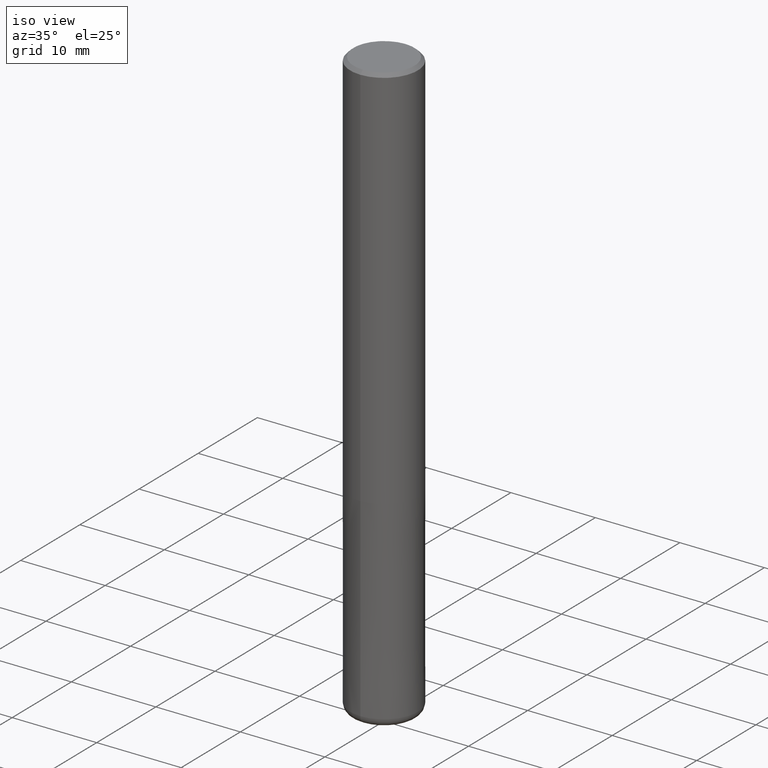
[diagram: clean part render]
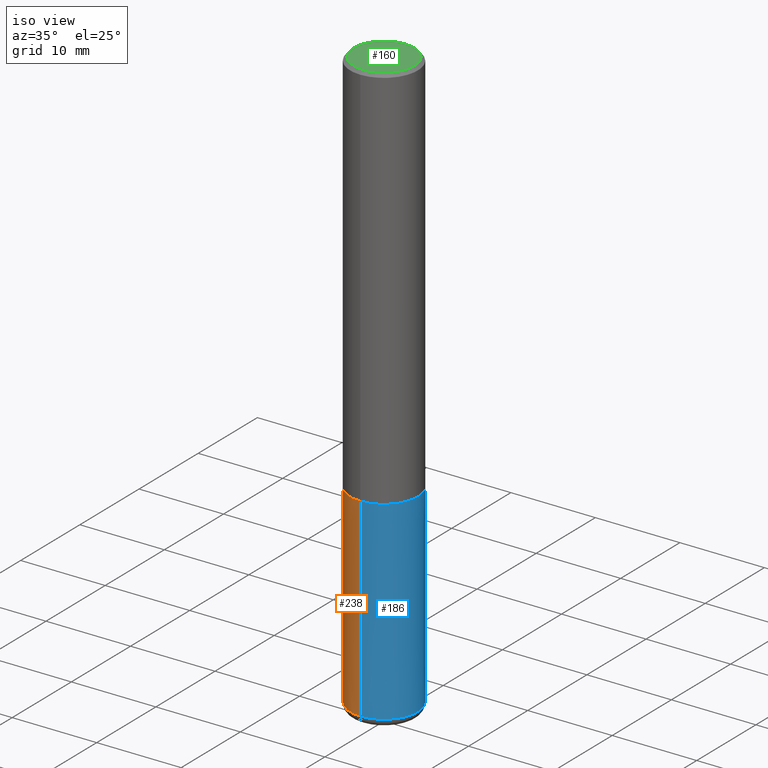
[diagram: same view with three faces highlighted in distinct colors, each labeled with its STEP entity id]
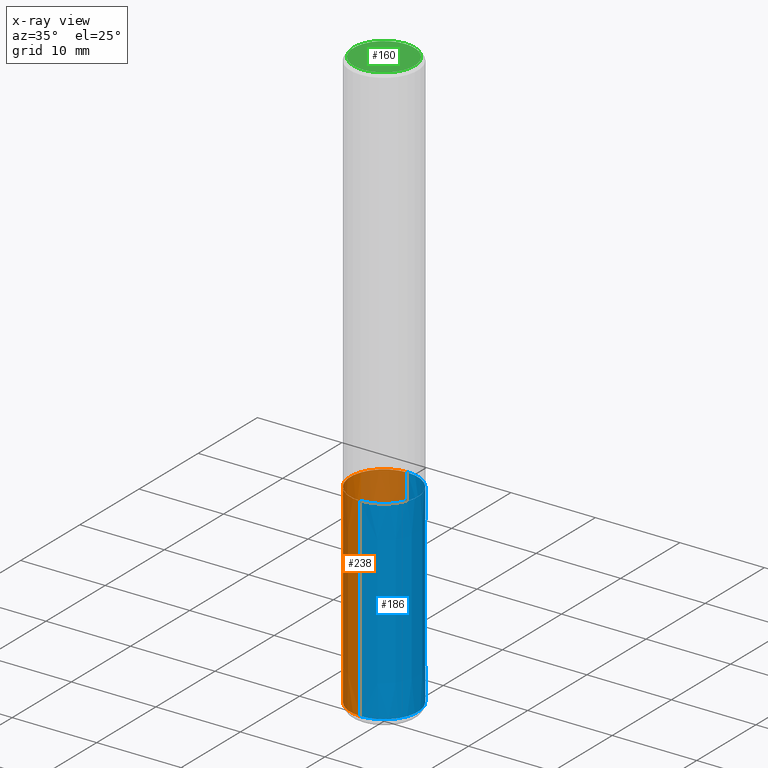
[diagram: x-ray of the same camera — body ghosted, the three highlighted faces saturated]
A machine part, iso view with three faces highlighted in distinct colors.
The next image is the same camera in x-ray (body ghosted, the three faces saturated) — at least one of them is partly hidden behind the body in this view.
Their STEP definitions:

[orange] entity #238 — the highlighted conical surface has half-angle 0 deg.
#110=VERTEX_POINT('',#271);
#126=EDGE_CURVE('',#132,#178,#288,.T.);
#128=VERTEX_POINT('',#290);
#132=VERTEX_POINT('',#294);
#168=EDGE_CURVE('',#128,#178,#336,.T.);
#178=VERTEX_POINT('',#348);
#180=EDGE_CURVE('',#110,#128,#350,.T.);
#222=EDGE_CURVE('',#132,#110,#397,.T.);
#238=ADVANCED_FACE('',(#417),#418,.T.);
#271=CARTESIAN_POINT('',(4.89830295465413E-016,-3.9999,-46.0));
#288=CIRCLE('',#470,4.0);
#290=CARTESIAN_POINT('',(0.0,3.9999,-46.0));
#294=CARTESIAN_POINT('',(4.89842541528951E-016,-4.0,-69.0));
#336=LINE('',#527,#528);
#348=CARTESIAN_POINT('',(0.0,4.0,-69.0));
#350=CIRCLE('',#546,3.9999);
#397=LINE('',#604,#605);
#417=FACE_OUTER_BOUND('',#630,.T.);
#418=CONICAL_SURFACE('',#631,3.99995,4.3478260869383E-006);
#470=AXIS2_PLACEMENT_3D('',#662,#663,#664);
#527=CARTESIAN_POINT('',(-4.89836418497181E-016,3.99995,-57.5));
#528=VECTOR('',#728,1.0);
#546=AXIS2_PLACEMENT_3D('',#741,#742,#743);
#604=CARTESIAN_POINT('',(4.89836418497182E-016,-3.99995,-57.5));
#605=VECTOR('',#800,1.0);
#630=EDGE_LOOP('',(#831,#832,#833,#834));
#631=AXIS2_PLACEMENT_3D('',#835,#836,#837);
#662=CARTESIAN_POINT('',(0.0,0.0,-69.0));
#663=DIRECTION('',(0.0,0.0,-1.0));
#664=DIRECTION('',(0.0,1.0,0.0));
#728=DIRECTION('',(-5.32437545136255E-022,4.3478260869246E-006,-0.999999999990548));
#741=CARTESIAN_POINT('',(0.0,0.0,-46.0));
#742=DIRECTION('',(0.0,0.0,-1.0));
#743=DIRECTION('',(0.0,1.0,0.0));
#800=DIRECTION('',(-5.32437545136255E-022,4.3478260869246E-006,0.999999999990548));
#831=ORIENTED_EDGE('',*,*,#168,.T.);
#832=ORIENTED_EDGE('',*,*,#126,.F.);
#833=ORIENTED_EDGE('',*,*,#222,.T.);
#834=ORIENTED_EDGE('',*,*,#180,.T.);
#835=CARTESIAN_POINT('',(0.0,0.0,-57.5));
#836=DIRECTION('',(0.0,-0.0,-1.0));
#837=DIRECTION('',(0.0,1.0,0.0));

[blue] entity #186 — the highlighted conical surface has half-angle 0 deg.
#110=VERTEX_POINT('',#271);
#124=EDGE_CURVE('',#128,#110,#286,.T.);
#128=VERTEX_POINT('',#290);
#132=VERTEX_POINT('',#294);
#162=EDGE_CURVE('',#178,#132,#330,.T.);
#168=EDGE_CURVE('',#128,#178,#336,.T.);
#178=VERTEX_POINT('',#348);
#186=ADVANCED_FACE('',(#356),#357,.T.);
#222=EDGE_CURVE('',#132,#110,#397,.T.);
#271=CARTESIAN_POINT('',(4.89830295465413E-016,-3.9999,-46.0));
#286=CIRCLE('',#467,3.9999);
#290=CARTESIAN_POINT('',(0.0,3.9999,-46.0));
#294=CARTESIAN_POINT('',(4.89842541528951E-016,-4.0,-69.0));
#330=CIRCLE('',#518,4.0);
#336=LINE('',#527,#528);
#348=CARTESIAN_POINT('',(0.0,4.0,-69.0));
#356=FACE_OUTER_BOUND('',#554,.T.);
#357=CONICAL_SURFACE('',#555,3.99995,4.3478260869383E-006);
#397=LINE('',#604,#605);
#467=AXIS2_PLACEMENT_3D('',#659,#660,#661);
#518=AXIS2_PLACEMENT_3D('',#719,#720,#721);
#527=CARTESIAN_POINT('',(-4.89836418497181E-016,3.99995,-57.5));
#528=VECTOR('',#728,1.0);
#554=EDGE_LOOP('',(#746,#747,#748,#749));
#555=AXIS2_PLACEMENT_3D('',#750,#751,#752);
#604=CARTESIAN_POINT('',(4.89836418497182E-016,-3.99995,-57.5));
#605=VECTOR('',#800,1.0);
#659=CARTESIAN_POINT('',(0.0,0.0,-46.0));
#660=DIRECTION('',(0.0,0.0,-1.0));
#661=DIRECTION('',(0.0,1.0,0.0));
#719=CARTESIAN_POINT('',(0.0,0.0,-69.0));
#720=DIRECTION('',(0.0,0.0,-1.0));
#721=DIRECTION('',(0.0,1.0,0.0));
#728=DIRECTION('',(-5.32437545136255E-022,4.3478260869246E-006,-0.999999999990548));
#746=ORIENTED_EDGE('',*,*,#168,.F.);
#747=ORIENTED_EDGE('',*,*,#124,.T.);
#748=ORIENTED_EDGE('',*,*,#222,.F.);
#749=ORIENTED_EDGE('',*,*,#162,.F.);
#750=CARTESIAN_POINT('',(0.0,0.0,-57.5));
#751=DIRECTION('',(0.0,-0.0,-1.0));
#752=DIRECTION('',(0.0,1.0,0.0));
#800=DIRECTION('',(-5.32437545136255E-022,4.3478260869246E-006,0.999999999990548));

[green] entity #160 — the highlighted planar face has unit normal (-0, 0, 1).
#114=VERTEX_POINT('',#275);
#122=EDGE_CURVE('',#114,#234,#284,.T.);
#160=ADVANCED_FACE('',(#327),#328,.T.);
#226=EDGE_CURVE('',#234,#114,#402,.T.);
#234=VERTEX_POINT('',#411);
#275=CARTESIAN_POINT('',(4.40858287376056E-016,-3.6,0.0));
#284=CIRCLE('',#464,3.6);
#327=FACE_OUTER_BOUND('',#514,.T.);
#328=PLANE('',#515);
#402=CIRCLE('',#611,3.6);
#411=CARTESIAN_POINT('',(0.0,3.6,0.0));
#464=AXIS2_PLACEMENT_3D('',#656,#657,#658);
#514=EDGE_LOOP('',(#714,#715));
#515=AXIS2_PLACEMENT_3D('',#716,#717,#718);
#611=AXIS2_PLACEMENT_3D('',#809,#810,#811);
#656=CARTESIAN_POINT('',(0.0,0.0,0.0));
#657=DIRECTION('',(0.0,0.0,-1.0));
#658=DIRECTION('',(0.0,1.0,0.0));
#714=ORIENTED_EDGE('',*,*,#226,.F.);
#715=ORIENTED_EDGE('',*,*,#122,.F.);
#716=CARTESIAN_POINT('',(0.0,1.8,0.0));
#717=DIRECTION('',(-0.0,0.0,1.0));
#718=DIRECTION('',(0.0,-1.0,0.0));
#809=CARTESIAN_POINT('',(0.0,0.0,0.0));
#810=DIRECTION('',(0.0,0.0,-1.0));
#811=DIRECTION('',(0.0,1.0,0.0));